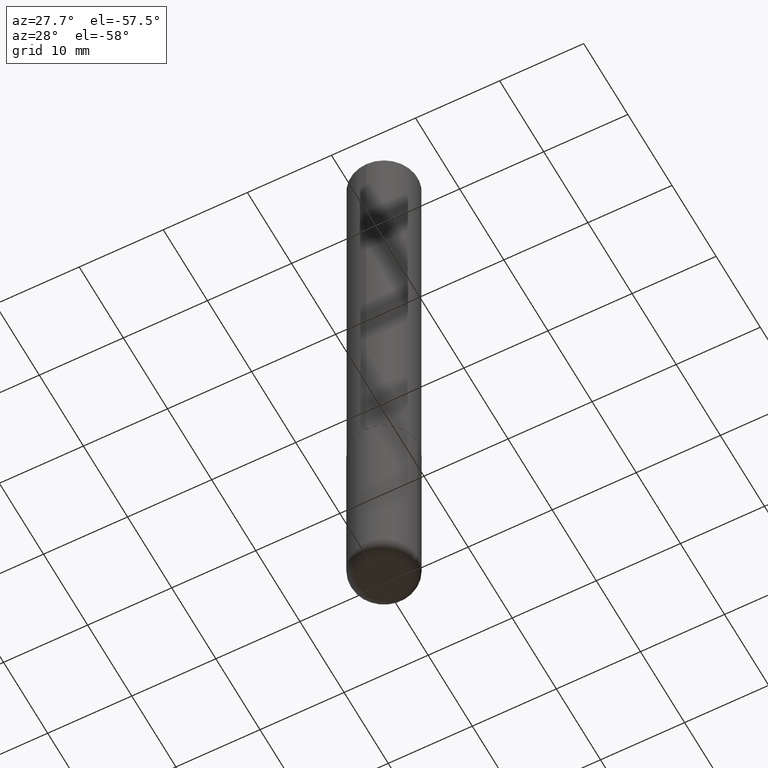
[diagram: clean part render]
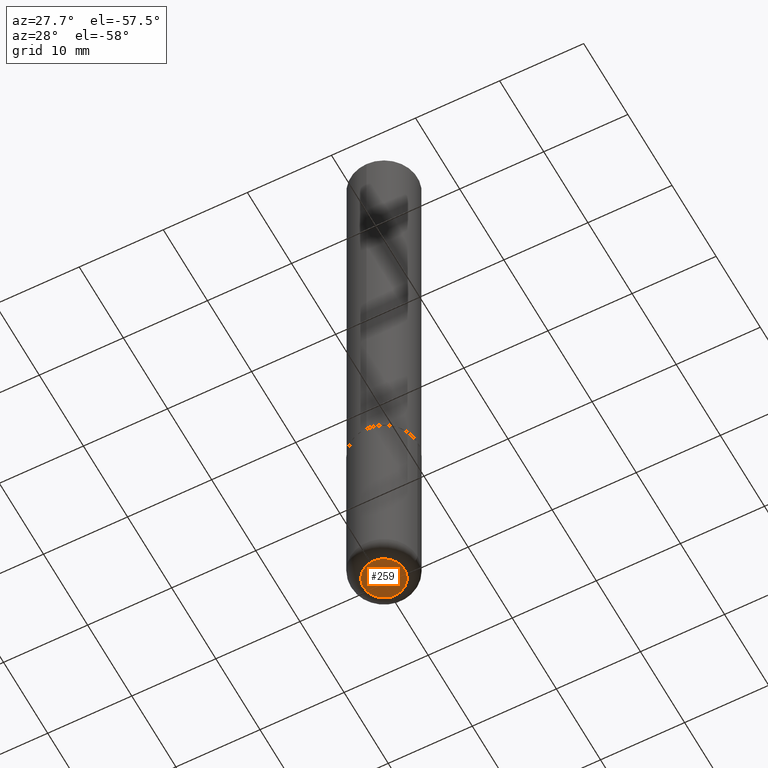
[diagram: same view with one face highlighted and labeled with its STEP entity id]
A machine part, auxiliary view. The second image highlights one B-rep face of the part: STEP entity #259.
In plain terms, the highlighted planar face has unit normal (0, -0, -1).
Its self-contained STEP definition (entity closure, byte-faithful):
#18 = CARTESIAN_POINT ( 'NONE',  ( 0.09625000000000000222, -1.114655417425673968E-14, -3.000000000000000444 ) ) ;
#25 = AXIS2_PLACEMENT_3D ( 'NONE', #207, #49, #403 ) ;
#38 = EDGE_CURVE ( 'NONE', #117, #346, #353, .T. ) ;
#49 = DIRECTION ( 'NONE',  ( -2.445468806185136597E-29, 3.491481338843145583E-15, 1.000000000000000000 ) ) ;
#75 = CARTESIAN_POINT ( 'NONE',  ( -0.09625000000000000222, -9.472639372467016689E-15, -3.000000000000000444 ) ) ;
#90 = CARTESIAN_POINT ( 'NONE',  ( 7.336406418555409790E-29, -1.047444401652943635E-14, -3.000000000000000444 ) ) ;
#112 = FACE_OUTER_BOUND ( 'NONE', #146, .T. ) ;
#117 = VERTEX_POINT ( 'NONE', #75 ) ;
#133 = DIRECTION ( 'NONE',  ( 1.000000000000000000, -6.982962677686259611E-15, 0.000000000000000000 ) ) ;
#146 = EDGE_LOOP ( 'NONE', ( #274, #218 ) ) ;
#177 = DIRECTION ( 'NONE',  ( 2.438088387897960049E-29, -3.491481338843145188E-15, -1.000000000000000000 ) ) ;
#204 = DIRECTION ( 'NONE',  ( -2.445468806185136597E-29, 3.491481338843145583E-15, 1.000000000000000000 ) ) ;
#207 = CARTESIAN_POINT ( 'NONE',  ( 7.336406418555409790E-29, -1.047444401652943635E-14, -3.000000000000000444 ) ) ;
#218 = ORIENTED_EDGE ( 'NONE', *, *, #38, .F. ) ;
#259 = ADVANCED_FACE ( 'NONE', ( #112 ), #378, .T. ) ;
#274 = ORIENTED_EDGE ( 'NONE', *, *, #382, .F. ) ;
#337 = CARTESIAN_POINT ( 'NONE',  ( 7.336406418555409790E-29, -1.047444401652943635E-14, -3.000000000000000444 ) ) ;
#346 = VERTEX_POINT ( 'NONE', #18 ) ;
#353 = CIRCLE ( 'NONE', #363, 0.09625000000000000222 ) ;
#363 = AXIS2_PLACEMENT_3D ( 'NONE', #337, #204, #133 ) ;
#370 = DIRECTION ( 'NONE',  ( -1.000000000000000000, 6.982962677686265922E-15, -4.876176775795935793E-29 ) ) ;
#378 = PLANE ( 'NONE',  #407 ) ;
#382 = EDGE_CURVE ( 'NONE', #346, #117, #415, .T. ) ;
#403 = DIRECTION ( 'NONE',  ( 1.000000000000000000, -6.982962677686259611E-15, 0.000000000000000000 ) ) ;
#407 = AXIS2_PLACEMENT_3D ( 'NONE', #90, #177, #370 ) ;
#415 = CIRCLE ( 'NONE', #25, 0.09625000000000000222 ) ;